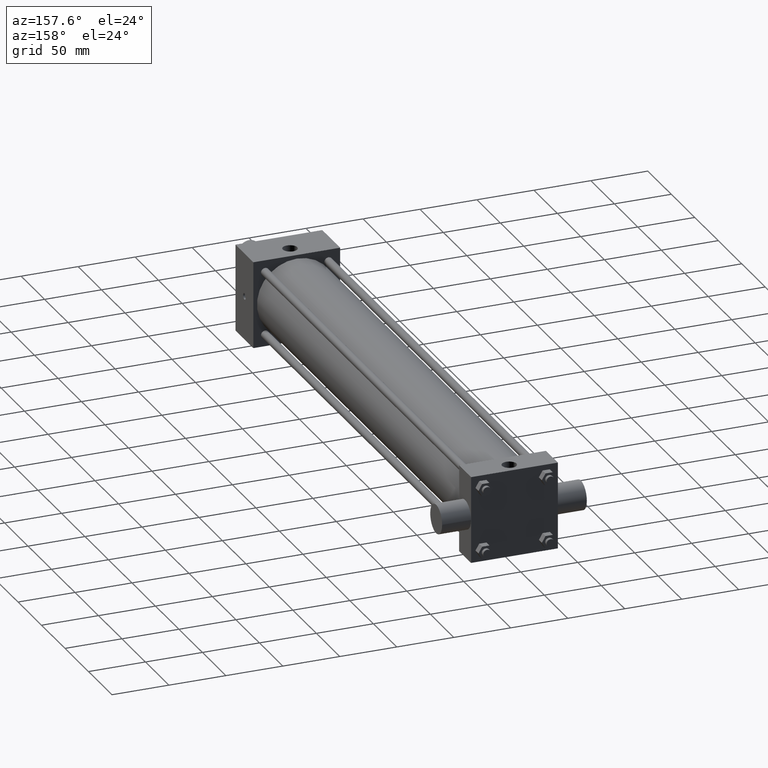
[diagram: clean part render]
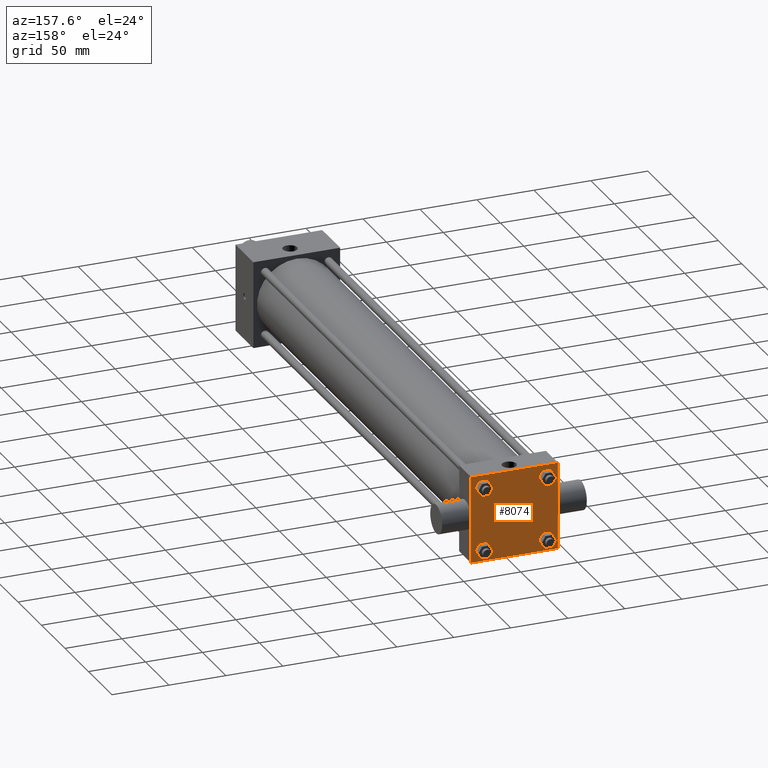
[diagram: same view with one face highlighted and labeled with its STEP entity id]
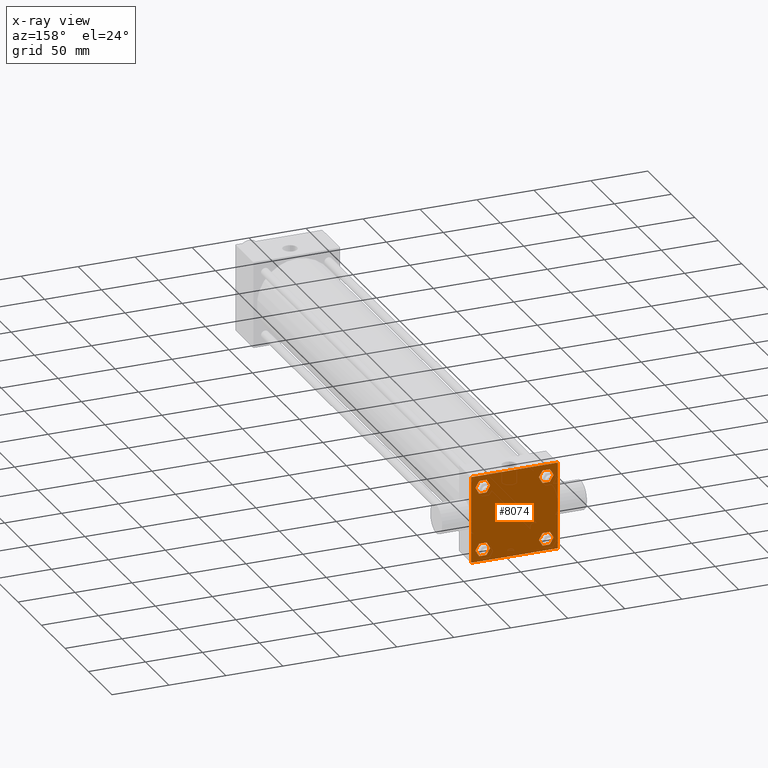
[diagram: x-ray of the same camera — body ghosted, the highlighted face saturated]
A machine part, auxiliary view. The second image highlights one B-rep face of the part: STEP entity #8074.
The next image is the same camera in x-ray: the body ghosted, the highlighted face saturated — about 0% of this face is hidden behind the body in this view.
In plain terms, the highlighted planar face has unit normal (0, 1, 0).
Its self-contained STEP definition (entity closure, byte-faithful):
#2411=FACE_OUTER_BOUND('',#2416,.T.);
#2412=FACE_BOUND('',#2417,.T.);
#2413=FACE_BOUND('',#2418,.T.);
#2414=FACE_BOUND('',#2419,.T.);
#2415=FACE_BOUND('',#2420,.T.);
#2416=EDGE_LOOP('',(#2421,#2422,#2423,#2424,#2425,#2426));
#2417=EDGE_LOOP('',(#2469,#2470,#2471,#2472,#2473,#2474));
#2418=EDGE_LOOP('',(#2517,#2518,#2519,#2520));
#2419=EDGE_LOOP('',(#2549,#2550,#2551,#2552,#2553,#2554));
#2420=EDGE_LOOP('',(#2597,#2598,#2599,#2600,#2601,#2602));
#2421=ORIENTED_EDGE('',*,*,#2427,.T.);
#2422=ORIENTED_EDGE('',*,*,#2436,.T.);
#2423=ORIENTED_EDGE('',*,*,#2443,.T.);
#2424=ORIENTED_EDGE('',*,*,#2450,.T.);
#2425=ORIENTED_EDGE('',*,*,#2457,.T.);
#2426=ORIENTED_EDGE('',*,*,#2464,.T.);
#2427=EDGE_CURVE('',#2432,#2433,#2428,.T.);
#2428=LINE('',#2429,#2430);
#2429=CARTESIAN_POINT('',(-3.102090653E+001,5.365750000E+002,3.336924574E+001));
#2430=VECTOR('',#2431,1.0E+000);
#2431=DIRECTION('',(-5.0E-001,0.0E+000,-8.66025403784439E-001));
#2432=VERTEX_POINT('',#2434);
#2433=VERTEX_POINT('',#2435);
#2434=CARTESIAN_POINT('',(-3.102090653E+001,5.365750000E+002,3.336924574E+001));
#2435=CARTESIAN_POINT('',(-3.422880323E+001,5.365750000E+002,2.781300000E+001));
#2436=EDGE_CURVE('',#2433,#2441,#2437,.T.);
#2437=LINE('',#2438,#2439);
#2438=CARTESIAN_POINT('',(-3.422880323E+001,5.365750000E+002,2.781300000E+001));
#2439=VECTOR('',#2440,1.0E+000);
#2440=DIRECTION('',(5.0E-001,0.0E+000,-8.66025403784439E-001));
#2441=VERTEX_POINT('',#2442);
#2442=CARTESIAN_POINT('',(-3.102090653E+001,5.365750000E+002,2.225675426E+001));
#2443=EDGE_CURVE('',#2441,#2448,#2444,.T.);
#2444=LINE('',#2445,#2446);
#2445=CARTESIAN_POINT('',(-3.102090653E+001,5.365750000E+002,2.225675426E+001));
#2446=VECTOR('',#2447,1.0E+000);
#2447=DIRECTION('',(1.0E+000,0.0E+000,0.0E+000));
#2448=VERTEX_POINT('',#2449);
#2449=CARTESIAN_POINT('',(-2.460509347E+001,5.365750000E+002,2.225675426E+001));
#2450=EDGE_CURVE('',#2448,#2455,#2451,.T.);
#2451=LINE('',#2452,#2453);
#2452=CARTESIAN_POINT('',(-2.460509347E+001,5.365750000E+002,2.225675426E+001));
#2453=VECTOR('',#2454,1.0E+000);
#2454=DIRECTION('',(5.0E-001,0.0E+000,8.66025403784439E-001));
#2455=VERTEX_POINT('',#2456);
#2456=CARTESIAN_POINT('',(-2.139719677E+001,5.365750000E+002,2.781300000E+001));
#2457=EDGE_CURVE('',#2455,#2462,#2458,.T.);
#2458=LINE('',#2459,#2460);
#2459=CARTESIAN_POINT('',(-2.139719677E+001,5.365750000E+002,2.781300000E+001));
#2460=VECTOR('',#2461,1.0E+000);
#2461=DIRECTION('',(-5.0E-001,0.0E+000,8.66025403784439E-001));
#2462=VERTEX_POINT('',#2463);
#2463=CARTESIAN_POINT('',(-2.460509347E+001,5.365750000E+002,3.336924574E+001));
#2464=EDGE_CURVE('',#2462,#2432,#2465,.T.);
#2465=LINE('',#2466,#2467);
#2466=CARTESIAN_POINT('',(-2.460509347E+001,5.365750000E+002,3.336924574E+001));
#2467=VECTOR('',#2468,1.0E+000);
#2468=DIRECTION('',(-1.0E+000,0.0E+000,0.0E+000));
#2469=ORIENTED_EDGE('',*,*,#2475,.T.);
#2470=ORIENTED_EDGE('',*,*,#2484,.T.);
#2471=ORIENTED_EDGE('',*,*,#2491,.T.);
#2472=ORIENTED_EDGE('',*,*,#2498,.T.);
#2473=ORIENTED_EDGE('',*,*,#2505,.T.);
#2474=ORIENTED_EDGE('',*,*,#2512,.T.);
#2475=EDGE_CURVE('',#2480,#2481,#2476,.T.);
#2476=LINE('',#2477,#2478);
#2477=CARTESIAN_POINT('',(2.460509347E+001,5.365750000E+002,-2.225675426E+001));
#2478=VECTOR('',#2479,1.0E+000);
#2479=DIRECTION('',(-5.0E-001,0.0E+000,-8.66025403784439E-001));
#2480=VERTEX_POINT('',#2482);
#2481=VERTEX_POINT('',#2483);
#2482=CARTESIAN_POINT('',(2.460509347E+001,5.365750000E+002,-2.225675426E+001));
#2483=CARTESIAN_POINT('',(2.139719677E+001,5.365750000E+002,-2.781300000E+001));
#2484=EDGE_CURVE('',#2481,#2489,#2485,.T.);
#2485=LINE('',#2486,#2487);
#2486=CARTESIAN_POINT('',(2.139719677E+001,5.365750000E+002,-2.781300000E+001));
#2487=VECTOR('',#2488,1.0E+000);
#2488=DIRECTION('',(5.0E-001,0.0E+000,-8.66025403784439E-001));
#2489=VERTEX_POINT('',#2490);
#2490=CARTESIAN_POINT('',(2.460509347E+001,5.365750000E+002,-3.336924574E+001));
#2491=EDGE_CURVE('',#2489,#2496,#2492,.T.);
#2492=LINE('',#2493,#2494);
#2493=CARTESIAN_POINT('',(2.460509347E+001,5.365750000E+002,-3.336924574E+001));
#2494=VECTOR('',#2495,1.0E+000);
#2495=DIRECTION('',(1.0E+000,0.0E+000,0.0E+000));
#2496=VERTEX_POINT('',#2497);
#2497=CARTESIAN_POINT('',(3.102090653E+001,5.365750000E+002,-3.336924574E+001));
#2498=EDGE_CURVE('',#2496,#2503,#2499,.T.);
#2499=LINE('',#2500,#2501);
#2500=CARTESIAN_POINT('',(3.102090653E+001,5.365750000E+002,-3.336924574E+001));
#2501=VECTOR('',#2502,1.0E+000);
#2502=DIRECTION('',(5.0E-001,0.0E+000,8.66025403784439E-001));
#2503=VERTEX_POINT('',#2504);
#2504=CARTESIAN_POINT('',(3.422880323E+001,5.365750000E+002,-2.781300000E+001));
#2505=EDGE_CURVE('',#2503,#2510,#2506,.T.);
#2506=LINE('',#2507,#2508);
#2507=CARTESIAN_POINT('',(3.422880323E+001,5.365750000E+002,-2.781300000E+001));
#2508=VECTOR('',#2509,1.0E+000);
#2509=DIRECTION('',(-5.0E-001,0.0E+000,8.66025403784439E-001));
#2510=VERTEX_POINT('',#2511);
#2511=CARTESIAN_POINT('',(3.102090653E+001,5.365750000E+002,-2.225675426E+001));
#2512=EDGE_CURVE('',#2510,#2480,#2513,.T.);
#2513=LINE('',#2514,#2515);
#2514=CARTESIAN_POINT('',(3.102090653E+001,5.365750000E+002,-2.225675426E+001));
#2515=VECTOR('',#2516,1.0E+000);
#2516=DIRECTION('',(-1.0E+000,0.0E+000,0.0E+000));
#2517=ORIENTED_EDGE('',*,*,#2521,.F.);
#2518=ORIENTED_EDGE('',*,*,#2530,.F.);
#2519=ORIENTED_EDGE('',*,*,#2537,.F.);
#2520=ORIENTED_EDGE('',*,*,#2544,.F.);
#2521=EDGE_CURVE('',#2526,#2527,#2522,.T.);
#2522=LINE('',#2523,#2524);
#2523=CARTESIAN_POINT('',(-3.810000000E+001,5.365750000E+002,-3.810000000E+001));
#2524=VECTOR('',#2525,1.0E+000);
#2525=DIRECTION('',(1.0E+000,0.0E+000,0.0E+000));
#2526=VERTEX_POINT('',#2528);
#2527=VERTEX_POINT('',#2529);
#2528=CARTESIAN_POINT('',(-3.810000000E+001,5.365750000E+002,-3.810000000E+001));
#2529=CARTESIAN_POINT('',(3.810000000E+001,5.365750000E+002,-3.810000000E+001));
#2530=EDGE_CURVE('',#2535,#2526,#2531,.T.);
#2531=LINE('',#2532,#2533);
#2532=CARTESIAN_POINT('',(-3.810000000E+001,5.365750000E+002,3.810000000E+001));
#2533=VECTOR('',#2534,1.0E+000);
#2534=DIRECTION('',(0.0E+000,0.0E+000,-1.0E+000));
#2535=VERTEX_POINT('',#2536);
#2536=CARTESIAN_POINT('',(-3.810000000E+001,5.365750000E+002,3.810000000E+001));
#2537=EDGE_CURVE('',#2542,#2535,#2538,.T.);
#2538=LINE('',#2539,#2540);
#2539=CARTESIAN_POINT('',(3.810000000E+001,5.365750000E+002,3.810000000E+001));
#2540=VECTOR('',#2541,1.0E+000);
#2541=DIRECTION('',(-1.0E+000,0.0E+000,0.0E+000));
#2542=VERTEX_POINT('',#2543);
#2543=CARTESIAN_POINT('',(3.810000000E+001,5.365750000E+002,3.810000000E+001));
#2544=EDGE_CURVE('',#2527,#2542,#2545,.T.);
#2545=LINE('',#2546,#2547);
#2546=CARTESIAN_POINT('',(3.810000000E+001,5.365750000E+002,-3.810000000E+001));
#2547=VECTOR('',#2548,1.0E+000);
#2548=DIRECTION('',(0.0E+000,0.0E+000,1.0E+000));
#2549=ORIENTED_EDGE('',*,*,#2555,.T.);
#2550=ORIENTED_EDGE('',*,*,#2564,.T.);
#2551=ORIENTED_EDGE('',*,*,#2571,.T.);
#2552=ORIENTED_EDGE('',*,*,#2578,.T.);
#2553=ORIENTED_EDGE('',*,*,#2585,.T.);
#2554=ORIENTED_EDGE('',*,*,#2592,.T.);
#2555=EDGE_CURVE('',#2560,#2561,#2556,.T.);
#2556=LINE('',#2557,#2558);
#2557=CARTESIAN_POINT('',(-3.102090653E+001,5.365750000E+002,-2.225675426E+001));
#2558=VECTOR('',#2559,1.0E+000);
#2559=DIRECTION('',(-5.0E-001,0.0E+000,-8.66025403784439E-001));
#2560=VERTEX_POINT('',#2562);
#2561=VERTEX_POINT('',#2563);
#2562=CARTESIAN_POINT('',(-3.102090653E+001,5.365750000E+002,-2.225675426E+001));
#2563=CARTESIAN_POINT('',(-3.422880323E+001,5.365750000E+002,-2.781300000E+001));
#2564=EDGE_CURVE('',#2561,#2569,#2565,.T.);
#2565=LINE('',#2566,#2567);
#2566=CARTESIAN_POINT('',(-3.422880323E+001,5.365750000E+002,-2.781300000E+001));
#2567=VECTOR('',#2568,1.0E+000);
#2568=DIRECTION('',(5.0E-001,0.0E+000,-8.66025403784439E-001));
#2569=VERTEX_POINT('',#2570);
#2570=CARTESIAN_POINT('',(-3.102090653E+001,5.365750000E+002,-3.336924574E+001));
#2571=EDGE_CURVE('',#2569,#2576,#2572,.T.);
#2572=LINE('',#2573,#2574);
#2573=CARTESIAN_POINT('',(-3.102090653E+001,5.365750000E+002,-3.336924574E+001));
#2574=VECTOR('',#2575,1.0E+000);
#2575=DIRECTION('',(1.0E+000,0.0E+000,0.0E+000));
#2576=VERTEX_POINT('',#2577);
#2577=CARTESIAN_POINT('',(-2.460509347E+001,5.365750000E+002,-3.336924574E+001));
#2578=EDGE_CURVE('',#2576,#2583,#2579,.T.);
#2579=LINE('',#2580,#2581);
#2580=CARTESIAN_POINT('',(-2.460509347E+001,5.365750000E+002,-3.336924574E+001));
#2581=VECTOR('',#2582,1.0E+000);
#2582=DIRECTION('',(5.0E-001,0.0E+000,8.66025403784439E-001));
#2583=VERTEX_POINT('',#2584);
#2584=CARTESIAN_POINT('',(-2.139719677E+001,5.365750000E+002,-2.781300000E+001));
#2585=EDGE_CURVE('',#2583,#2590,#2586,.T.);
#2586=LINE('',#2587,#2588);
#2587=CARTESIAN_POINT('',(-2.139719677E+001,5.365750000E+002,-2.781300000E+001));
#2588=VECTOR('',#2589,1.0E+000);
#2589=DIRECTION('',(-5.0E-001,0.0E+000,8.66025403784439E-001));
#2590=VERTEX_POINT('',#2591);
#2591=CARTESIAN_POINT('',(-2.460509347E+001,5.365750000E+002,-2.225675426E+001));
#2592=EDGE_CURVE('',#2590,#2560,#2593,.T.);
#2593=LINE('',#2594,#2595);
#2594=CARTESIAN_POINT('',(-2.460509347E+001,5.365750000E+002,-2.225675426E+001));
#2595=VECTOR('',#2596,1.0E+000);
#2596=DIRECTION('',(-1.0E+000,0.0E+000,0.0E+000));
#2597=ORIENTED_EDGE('',*,*,#2603,.T.);
#2598=ORIENTED_EDGE('',*,*,#2612,.T.);
#2599=ORIENTED_EDGE('',*,*,#2619,.T.);
#2600=ORIENTED_EDGE('',*,*,#2626,.T.);
#2601=ORIENTED_EDGE('',*,*,#2633,.T.);
#2602=ORIENTED_EDGE('',*,*,#2640,.T.);
#2603=EDGE_CURVE('',#2608,#2609,#2604,.T.);
#2604=LINE('',#2605,#2606);
#2605=CARTESIAN_POINT('',(2.460509347E+001,5.365750000E+002,3.336924574E+001));
#2606=VECTOR('',#2607,1.0E+000);
#2607=DIRECTION('',(-5.0E-001,0.0E+000,-8.66025403784439E-001));
#2608=VERTEX_POINT('',#2610);
#2609=VERTEX_POINT('',#2611);
#2610=CARTESIAN_POINT('',(2.460509347E+001,5.365750000E+002,3.336924574E+001));
#2611=CARTESIAN_POINT('',(2.139719677E+001,5.365750000E+002,2.781300000E+001));
#2612=EDGE_CURVE('',#2609,#2617,#2613,.T.);
#2613=LINE('',#2614,#2615);
#2614=CARTESIAN_POINT('',(2.139719677E+001,5.365750000E+002,2.781300000E+001));
#2615=VECTOR('',#2616,1.0E+000);
#2616=DIRECTION('',(5.0E-001,0.0E+000,-8.66025403784439E-001));
#2617=VERTEX_POINT('',#2618);
#2618=CARTESIAN_POINT('',(2.460509347E+001,5.365750000E+002,2.225675426E+001));
#2619=EDGE_CURVE('',#2617,#2624,#2620,.T.);
#2620=LINE('',#2621,#2622);
#2621=CARTESIAN_POINT('',(2.460509347E+001,5.365750000E+002,2.225675426E+001));
#2622=VECTOR('',#2623,1.0E+000);
#2623=DIRECTION('',(1.0E+000,0.0E+000,0.0E+000));
#2624=VERTEX_POINT('',#2625);
#2625=CARTESIAN_POINT('',(3.102090653E+001,5.365750000E+002,2.225675426E+001));
#2626=EDGE_CURVE('',#2624,#2631,#2627,.T.);
#2627=LINE('',#2628,#2629);
#2628=CARTESIAN_POINT('',(3.102090653E+001,5.365750000E+002,2.225675426E+001));
#2629=VECTOR('',#2630,1.0E+000);
#2630=DIRECTION('',(5.0E-001,0.0E+000,8.66025403784439E-001));
#2631=VERTEX_POINT('',#2632);
#2632=CARTESIAN_POINT('',(3.422880323E+001,5.365750000E+002,2.781300000E+001));
#2633=EDGE_CURVE('',#2631,#2638,#2634,.T.);
#2634=LINE('',#2635,#2636);
#2635=CARTESIAN_POINT('',(3.422880323E+001,5.365750000E+002,2.781300000E+001));
#2636=VECTOR('',#2637,1.0E+000);
#2637=DIRECTION('',(-5.0E-001,0.0E+000,8.66025403784439E-001));
#2638=VERTEX_POINT('',#2639);
#2639=CARTESIAN_POINT('',(3.102090653E+001,5.365750000E+002,3.336924574E+001));
#2640=EDGE_CURVE('',#2638,#2608,#2641,.T.);
#2641=LINE('',#2642,#2643);
#2642=CARTESIAN_POINT('',(3.102090653E+001,5.365750000E+002,3.336924574E+001));
#2643=VECTOR('',#2644,1.0E+000);
#2644=DIRECTION('',(-1.0E+000,0.0E+000,0.0E+000));
#2645=PLANE('',#2646);
#2646=AXIS2_PLACEMENT_3D('',#2647,#2648,#2649);
#2647=CARTESIAN_POINT('',(-3.810000000E+001,5.365750000E+002,-3.810000000E+001));
#2648=DIRECTION('',(0.0E+000,1.0E+000,0.0E+000));
#2649=DIRECTION('',(0.0E+000,0.0E+000,1.0E+000));
#8074=ADVANCED_FACE('',(#2411,#2412,#2413,#2414,#2415),#2645,.T.);